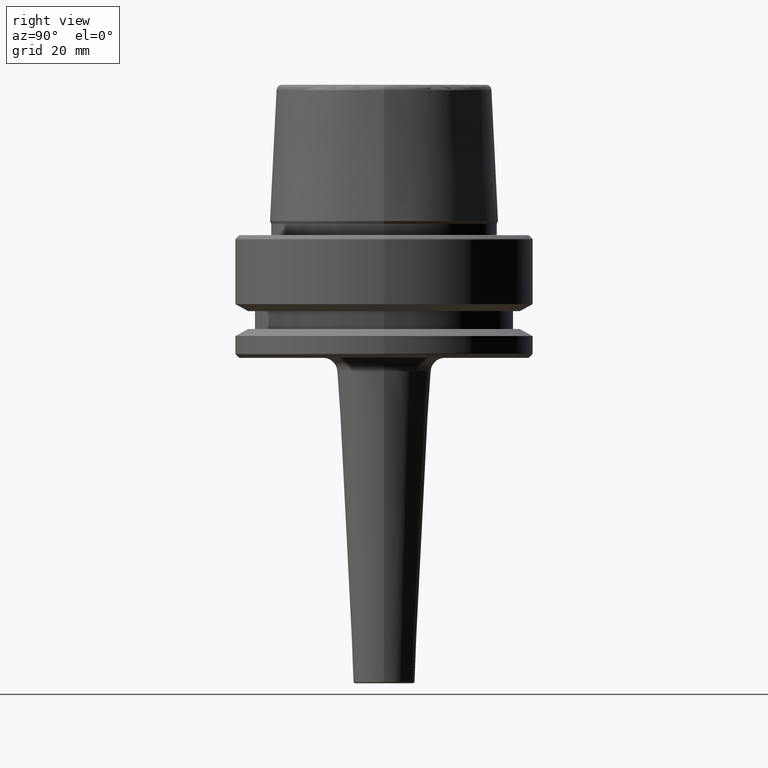
[diagram: clean part render]
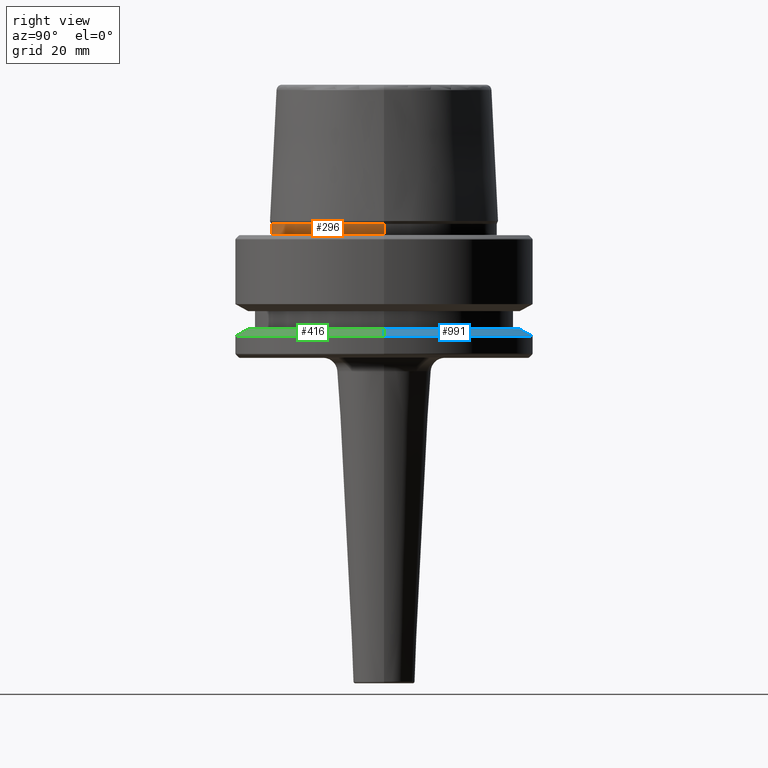
[diagram: same view with three faces highlighted in distinct colors, each labeled with its STEP entity id]
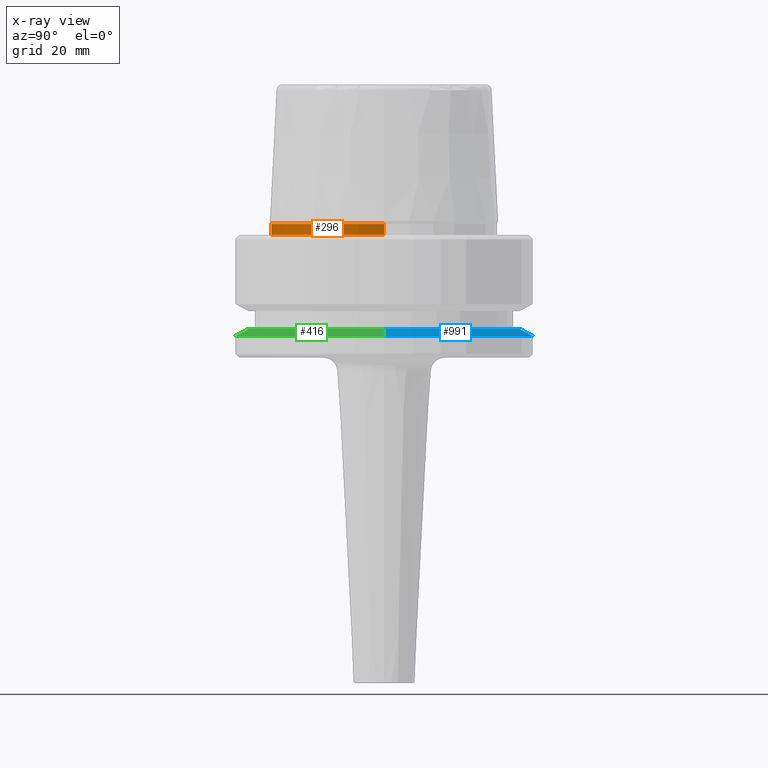
[diagram: x-ray of the same camera — body ghosted, the three highlighted faces saturated]
A machine part, right view with three faces highlighted in distinct colors.
The next image is the same camera in x-ray (body ghosted, the three faces saturated) — at least one of them is partly hidden behind the body in this view.
Their STEP definitions:

[orange] entity #296 — the highlighted cylindrical surface (partial cylindrical patch) has radius 23.89 mm, axis along (-0, -0, 1).
#143 = CIRCLE ( 'NONE', #760, 23.89000000000000100 ) ;
#179 = DIRECTION ( 'NONE',  ( -0.0000000000000000000, -0.0000000000000000000, 1.000000000000000000 ) ) ;
#202 = VERTEX_POINT ( 'NONE', #427 ) ;
#225 = AXIS2_PLACEMENT_3D ( 'NONE', #1024, #345, #1028 ) ;
#296 = ADVANCED_FACE ( 'NONE', ( #521 ), #608, .T. ) ;
#325 = DIRECTION ( 'NONE',  ( -0.0000000000000000000, -0.0000000000000000000, 1.000000000000000000 ) ) ;
#334 = LINE ( 'NONE', #590, #1079 ) ;
#340 = CARTESIAN_POINT ( 'NONE',  ( 0.0000000000000000000, 0.0000000000000000000, 2.398838415132276100 ) ) ;
#345 = DIRECTION ( 'NONE',  ( -0.0000000000000000000, -0.0000000000000000000, 1.000000000000000000 ) ) ;
#346 = VERTEX_POINT ( 'NONE', #596 ) ;
#398 = LINE ( 'NONE', #946, #584 ) ;
#401 = ORIENTED_EDGE ( 'NONE', *, *, #597, .T. ) ;
#407 = EDGE_CURVE ( 'NONE', #1007, #346, #996, .T. ) ;
#427 = CARTESIAN_POINT ( 'NONE',  ( 23.89000000000000100, 0.0000000000000000000, 2.398838415132276100 ) ) ;
#515 = DIRECTION ( 'NONE',  ( -0.0000000000000000000, -0.0000000000000000000, 1.000000000000000000 ) ) ;
#521 = FACE_OUTER_BOUND ( 'NONE', #611, .T. ) ;
#560 = VERTEX_POINT ( 'NONE', #1043 ) ;
#584 = VECTOR ( 'NONE', #179, 1000.000000000000000 ) ;
#590 = CARTESIAN_POINT ( 'NONE',  ( -23.89000000000000100, 2.925681203163027000E-015, 78.96908074195309300 ) ) ;
#596 = CARTESIAN_POINT ( 'NONE',  ( 23.89000000000000400, 0.0000000000000000000, 0.1312552021302954000 ) ) ;
#597 = EDGE_CURVE ( 'NONE', #346, #202, #398, .T. ) ;
#600 = DIRECTION ( 'NONE',  ( 1.000000000000000000, 0.0000000000000000000, 0.0000000000000000000 ) ) ;
#608 = CYLINDRICAL_SURFACE ( 'NONE', #994, 23.89000000000000100 ) ;
#611 = EDGE_LOOP ( 'NONE', ( #694, #951, #401, #1046 ) ) ;
#656 = EDGE_CURVE ( 'NONE', #1007, #560, #334, .T. ) ;
#694 = ORIENTED_EDGE ( 'NONE', *, *, #656, .F. ) ;
#760 = AXIS2_PLACEMENT_3D ( 'NONE', #340, #515, #600 ) ;
#837 = EDGE_CURVE ( 'NONE', #560, #202, #143, .T. ) ;
#852 = DIRECTION ( 'NONE',  ( -0.0000000000000000000, -0.0000000000000000000, 1.000000000000000000 ) ) ;
#892 = DIRECTION ( 'NONE',  ( 1.000000000000000000, 0.0000000000000000000, 0.0000000000000000000 ) ) ;
#946 = CARTESIAN_POINT ( 'NONE',  ( 23.89000000000000100, 0.0000000000000000000, 78.96908074195309300 ) ) ;
#951 = ORIENTED_EDGE ( 'NONE', *, *, #407, .T. ) ;
#994 = AXIS2_PLACEMENT_3D ( 'NONE', #1006, #325, #892 ) ;
#996 = CIRCLE ( 'NONE', #225, 23.89000000000000400 ) ;
#1006 = CARTESIAN_POINT ( 'NONE',  ( 0.0000000000000000000, 0.0000000000000000000, 78.96908074195309300 ) ) ;
#1007 = VERTEX_POINT ( 'NONE', #1055 ) ;
#1024 = CARTESIAN_POINT ( 'NONE',  ( 0.0000000000000000000, 0.0000000000000000000, 0.1312552021302954000 ) ) ;
#1028 = DIRECTION ( 'NONE',  ( 1.000000000000000000, 0.0000000000000000000, 0.0000000000000000000 ) ) ;
#1043 = CARTESIAN_POINT ( 'NONE',  ( -23.89000000000000100, 2.942846235451747500E-015, 2.398838415132276100 ) ) ;
#1046 = ORIENTED_EDGE ( 'NONE', *, *, #837, .F. ) ;
#1055 = CARTESIAN_POINT ( 'NONE',  ( -23.89000000000000400, 2.961613815265650600E-015, 0.1312552021302954000 ) ) ;
#1079 = VECTOR ( 'NONE', #852, 1000.000000000000000 ) ;

[blue] entity #991 — the highlighted conical surface has half-angle 60 deg.
#37 = ORIENTED_EDGE ( 'NONE', *, *, #430, .T. ) ;
#52 = VERTEX_POINT ( 'NONE', #254 ) ;
#62 = VERTEX_POINT ( 'NONE', #1152 ) ;
#88 = DIRECTION ( 'NONE',  ( 1.000000000000000000, 0.0000000000000000000, 0.0000000000000000000 ) ) ;
#109 = VERTEX_POINT ( 'NONE', #292 ) ;
#156 = DIRECTION ( 'NONE',  ( 0.8660254037844410400, 1.060575238724909700E-016, -0.4999999999999958400 ) ) ;
#184 = CARTESIAN_POINT ( 'NONE',  ( -31.50000000000000000, 0.0000000000000000000, -21.37749907475931700 ) ) ;
#185 = DIRECTION ( 'NONE',  ( -0.0000000000000000000, -0.0000000000000000000, 1.000000000000000000 ) ) ;
#186 = DIRECTION ( 'NONE',  ( 0.0000000000000000000, 0.0000000000000000000, -1.000000000000000000 ) ) ;
#254 = CARTESIAN_POINT ( 'NONE',  ( -28.94089653438085100, 0.0000000000000000000, -19.90000000000001600 ) ) ;
#287 = CARTESIAN_POINT ( 'NONE',  ( 0.0000000000000000000, 0.0000000000000000000, -21.37749907475931700 ) ) ;
#292 = CARTESIAN_POINT ( 'NONE',  ( -31.50000000000000000, 3.857637417314162700E-015, -21.37749907475931700 ) ) ;
#337 = AXIS2_PLACEMENT_3D ( 'NONE', #754, #186, #854 ) ;
#341 = ORIENTED_EDGE ( 'NONE', *, *, #549, .F. ) ;
#430 = EDGE_CURVE ( 'NONE', #62, #661, #825, .T. ) ;
#528 = ORIENTED_EDGE ( 'NONE', *, *, #914, .T. ) ;
#537 = EDGE_CURVE ( 'NONE', #52, #109, #937, .T. ) ;
#549 = EDGE_CURVE ( 'NONE', #62, #52, #1164, .T. ) ;
#572 = CARTESIAN_POINT ( 'NONE',  ( 31.50000000000000000, 0.0000000000000000000, -21.37749907475931700 ) ) ;
#641 = VECTOR ( 'NONE', #853, 1000.000000000000100 ) ;
#654 = DIRECTION ( 'NONE',  ( 1.000000000000000000, 0.0000000000000000000, 0.0000000000000000000 ) ) ;
#661 = VERTEX_POINT ( 'NONE', #572 ) ;
#663 = AXIS2_PLACEMENT_3D ( 'NONE', #287, #185, #88 ) ;
#671 = VECTOR ( 'NONE', #156, 1000.000000000000100 ) ;
#697 = CIRCLE ( 'NONE', #663, 31.50000000000000000 ) ;
#754 = CARTESIAN_POINT ( 'NONE',  ( 0.0000000000000000000, 0.0000000000000000000, -21.37749907475931700 ) ) ;
#757 = CONICAL_SURFACE ( 'NONE', #337, 31.50000000000000000, 1.047197551196602500 ) ;
#825 = LINE ( 'NONE', #1122, #671 ) ;
#853 = DIRECTION ( 'NONE',  ( -0.8660254037844410400, 0.0000000000000000000, -0.4999999999999958400 ) ) ;
#854 = DIRECTION ( 'NONE',  ( -1.000000000000000000, 0.0000000000000000000, 0.0000000000000000000 ) ) ;
#881 = FACE_OUTER_BOUND ( 'NONE', #1095, .T. ) ;
#914 = EDGE_CURVE ( 'NONE', #661, #109, #697, .T. ) ;
#937 = LINE ( 'NONE', #184, #641 ) ;
#938 = DIRECTION ( 'NONE',  ( -0.0000000000000000000, -0.0000000000000000000, 1.000000000000000000 ) ) ;
#991 = ADVANCED_FACE ( 'NONE', ( #881 ), #757, .T. ) ;
#1050 = CARTESIAN_POINT ( 'NONE',  ( 0.0000000000000000000, 0.0000000000000000000, -19.90000000000001600 ) ) ;
#1095 = EDGE_LOOP ( 'NONE', ( #341, #37, #528, #1127 ) ) ;
#1122 = CARTESIAN_POINT ( 'NONE',  ( 31.50000000000000000, 3.857637417314162700E-015, -21.37749907475931700 ) ) ;
#1127 = ORIENTED_EDGE ( 'NONE', *, *, #537, .F. ) ;
#1152 = CARTESIAN_POINT ( 'NONE',  ( 28.94089653438085100, 3.700937523921292900E-015, -19.90000000000001600 ) ) ;
#1164 = CIRCLE ( 'NONE', #1238, 28.94089653438085100 ) ;
#1238 = AXIS2_PLACEMENT_3D ( 'NONE', #1050, #938, #654 ) ;

[green] entity #416 — the highlighted conical surface has half-angle 60 deg.
#52 = VERTEX_POINT ( 'NONE', #254 ) ;
#62 = VERTEX_POINT ( 'NONE', #1152 ) ;
#109 = VERTEX_POINT ( 'NONE', #292 ) ;
#150 = EDGE_CURVE ( 'NONE', #109, #661, #840, .T. ) ;
#155 = ORIENTED_EDGE ( 'NONE', *, *, #468, .F. ) ;
#156 = DIRECTION ( 'NONE',  ( 0.8660254037844410400, 1.060575238724909700E-016, -0.4999999999999958400 ) ) ;
#184 = CARTESIAN_POINT ( 'NONE',  ( -31.50000000000000000, 0.0000000000000000000, -21.37749907475931700 ) ) ;
#201 = ORIENTED_EDGE ( 'NONE', *, *, #430, .F. ) ;
#254 = CARTESIAN_POINT ( 'NONE',  ( -28.94089653438085100, 0.0000000000000000000, -19.90000000000001600 ) ) ;
#292 = CARTESIAN_POINT ( 'NONE',  ( -31.50000000000000000, 3.857637417314162700E-015, -21.37749907475931700 ) ) ;
#372 = ORIENTED_EDGE ( 'NONE', *, *, #537, .T. ) ;
#412 = CARTESIAN_POINT ( 'NONE',  ( 0.0000000000000000000, 0.0000000000000000000, -21.37749907475931700 ) ) ;
#416 = ADVANCED_FACE ( 'NONE', ( #639 ), #547, .T. ) ;
#430 = EDGE_CURVE ( 'NONE', #62, #661, #825, .T. ) ;
#439 = CIRCLE ( 'NONE', #1068, 28.94089653438085100 ) ;
#451 = ORIENTED_EDGE ( 'NONE', *, *, #150, .T. ) ;
#468 = EDGE_CURVE ( 'NONE', #52, #62, #439, .T. ) ;
#529 = DIRECTION ( 'NONE',  ( -0.0000000000000000000, -0.0000000000000000000, 1.000000000000000000 ) ) ;
#536 = DIRECTION ( 'NONE',  ( 1.000000000000000000, 0.0000000000000000000, 0.0000000000000000000 ) ) ;
#537 = EDGE_CURVE ( 'NONE', #52, #109, #937, .T. ) ;
#547 = CONICAL_SURFACE ( 'NONE', #968, 31.50000000000000000, 1.047197551196602500 ) ;
#554 = EDGE_LOOP ( 'NONE', ( #201, #155, #372, #451 ) ) ;
#572 = CARTESIAN_POINT ( 'NONE',  ( 31.50000000000000000, 0.0000000000000000000, -21.37749907475931700 ) ) ;
#615 = CARTESIAN_POINT ( 'NONE',  ( 0.0000000000000000000, 0.0000000000000000000, -19.90000000000001600 ) ) ;
#639 = FACE_OUTER_BOUND ( 'NONE', #554, .T. ) ;
#641 = VECTOR ( 'NONE', #853, 1000.000000000000100 ) ;
#661 = VERTEX_POINT ( 'NONE', #572 ) ;
#671 = VECTOR ( 'NONE', #156, 1000.000000000000100 ) ;
#730 = CARTESIAN_POINT ( 'NONE',  ( 0.0000000000000000000, 0.0000000000000000000, -21.37749907475931700 ) ) ;
#733 = DIRECTION ( 'NONE',  ( -1.000000000000000000, 0.0000000000000000000, 0.0000000000000000000 ) ) ;
#825 = LINE ( 'NONE', #1122, #671 ) ;
#840 = CIRCLE ( 'NONE', #876, 31.50000000000000000 ) ;
#853 = DIRECTION ( 'NONE',  ( -0.8660254037844410400, 0.0000000000000000000, -0.4999999999999958400 ) ) ;
#876 = AXIS2_PLACEMENT_3D ( 'NONE', #730, #1002, #954 ) ;
#937 = LINE ( 'NONE', #184, #641 ) ;
#954 = DIRECTION ( 'NONE',  ( 1.000000000000000000, 0.0000000000000000000, 0.0000000000000000000 ) ) ;
#968 = AXIS2_PLACEMENT_3D ( 'NONE', #412, #1116, #733 ) ;
#1002 = DIRECTION ( 'NONE',  ( -0.0000000000000000000, -0.0000000000000000000, 1.000000000000000000 ) ) ;
#1068 = AXIS2_PLACEMENT_3D ( 'NONE', #615, #529, #536 ) ;
#1116 = DIRECTION ( 'NONE',  ( 0.0000000000000000000, 0.0000000000000000000, -1.000000000000000000 ) ) ;
#1122 = CARTESIAN_POINT ( 'NONE',  ( 31.50000000000000000, 3.857637417314162700E-015, -21.37749907475931700 ) ) ;
#1152 = CARTESIAN_POINT ( 'NONE',  ( 28.94089653438085100, 3.700937523921292900E-015, -19.90000000000001600 ) ) ;